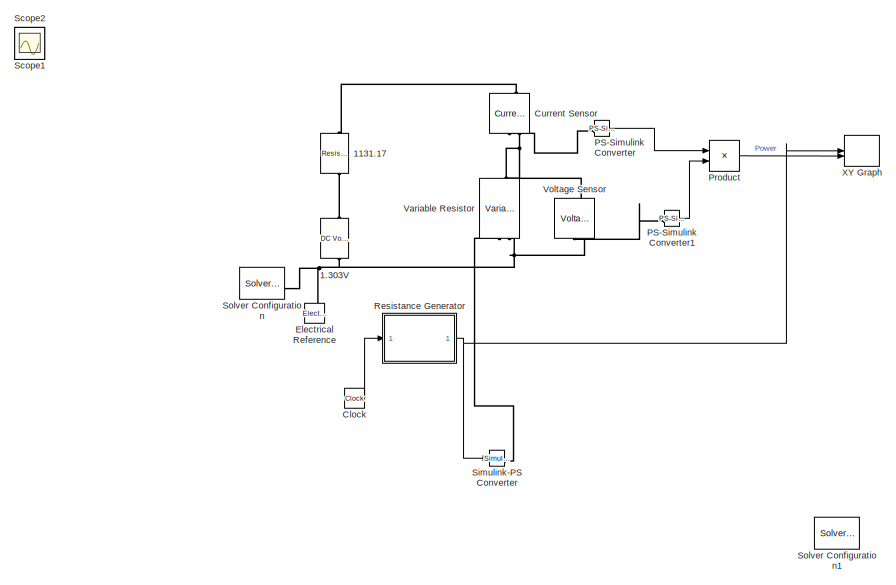
[diagram: root canvas - part 1/2, middle left region]
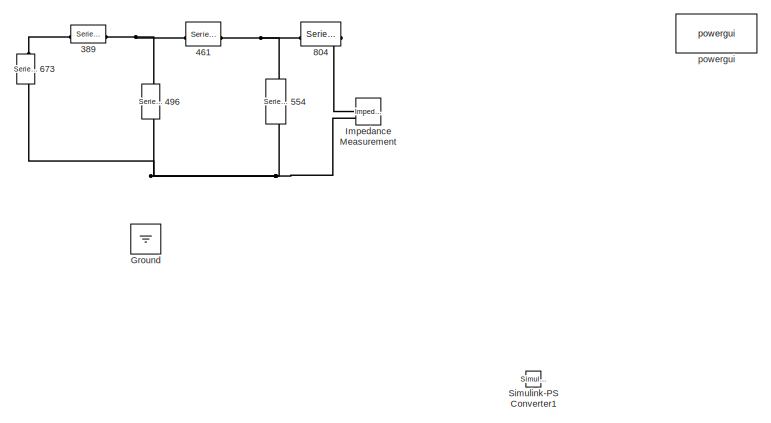
[diagram: root canvas - part 2/2, bottom right region]
MODEL slx_52c89bc29a28
KIND model
CONFIG AbsTol = auto
CONFIG EnableMultiTasking = off
CONFIG FixedStep = auto
CONFIG MaxStep = auto
CONFIG MinStep = auto
CONFIG RelTol = 1e-3
CONFIG SampleTimeConstraint = Unconstrained
CONFIG SolverName = VariableStepAuto
CONFIG StartTime = 0.0
CONFIG StopTime = 100
BLOCK [Reference] 1.303V  REF=fl_lib/Electrical/Electrical Sources/DC Voltage Source
  NameLocation = right
  SourceBlock = fl_lib/Electrical/Electrical Sources/DC Voltage Source
  SourceType = DC Voltage Source
BLOCK [Reference] 1131.17  REF=fl_lib/Electrical/Electrical Elements/Resistor
  NameLocation = left
  SourceBlock = fl_lib/Electrical/Electrical Elements/Resistor
  SourceType = Resistor
BLOCK [Reference] 389  REF=spsSeriesRLCBranchLib/Series RLC Branch
  LibrarySourceBlock = sps_lib/Passives/Series RLC Branch
  NameLocation = top
  SourceBlock = spsSeriesRLCBranchLib/Series RLC Branch
  SourceType = Series RLC Branch
BLOCK [Reference] 461  REF=spsSeriesRLCBranchLib/Series RLC Branch
  LibrarySourceBlock = sps_lib/Passives/Series RLC Branch
  NameLocation = top
  SourceBlock = spsSeriesRLCBranchLib/Series RLC Branch
  SourceType = Series RLC Branch
BLOCK [Reference] 496  REF=spsSeriesRLCBranchLib/Series RLC Branch
  LibrarySourceBlock = sps_lib/Passives/Series RLC Branch
  NameLocation = left
  SourceBlock = spsSeriesRLCBranchLib/Series RLC Branch
  SourceType = Series RLC Branch
BLOCK [Reference] 554  REF=spsSeriesRLCBranchLib/Series RLC Branch
  LibrarySourceBlock = sps_lib/Passives/Series RLC Branch
  NameLocation = left
  SourceBlock = spsSeriesRLCBranchLib/Series RLC Branch
  SourceType = Series RLC Branch
BLOCK [Reference] 673  REF=spsSeriesRLCBranchLib/Series RLC Branch
  LibrarySourceBlock = sps_lib/Passives/Series RLC Branch
  NameLocation = left
  SourceBlock = spsSeriesRLCBranchLib/Series RLC Branch
  SourceType = Series RLC Branch
BLOCK [Reference] 804  REF=spsSeriesRLCBranchLib/Series RLC Branch
  LibrarySourceBlock = sps_lib/Passives/Series RLC Branch
  NameLocation = top
  SourceBlock = spsSeriesRLCBranchLib/Series RLC Branch
  SourceType = Series RLC Branch
BLOCK [Clock] Clock
BLOCK [Reference] Current Sensor  REF=fl_lib/Electrical/Electrical Sensors/Current Sensor
  NameLocation = left
  SourceBlock = fl_lib/Electrical/Electrical Sensors/Current Sensor
  SourceType = Current Sensor
BLOCK [Reference] Electrical Reference  REF=fl_lib/Electrical/Electrical Elements/Electrical Reference
  NameLocation = right
  SourceBlock = fl_lib/Electrical/Electrical Elements/Electrical Reference
  SourceType = Electrical Reference
BLOCK [Ground] Ground
BLOCK [Reference] Impedance Measurement  REF=spsImpedanceMeasurementLib/Impedance Measurement
  LibrarySourceBlock = sps_lib/Sensors and Measurements/Impedance Measurement
  SourceBlock = spsImpedanceMeasurementLib/Impedance Measurement
  SourceType = Impedance Measurement
BLOCK [Reference] PS-Simulink Converter  REF=nesl_utility/PS-Simulink
Converter
  SourceBlock = nesl_utility/PS-Simulink\nConverter
  SourceType = PS-Simulink\nConverter
BLOCK [Reference] PS-Simulink Converter1  REF=nesl_utility/PS-Simulink
Converter
  SourceBlock = nesl_utility/PS-Simulink\nConverter
  SourceType = PS-Simulink\nConverter
BLOCK [Product] Product
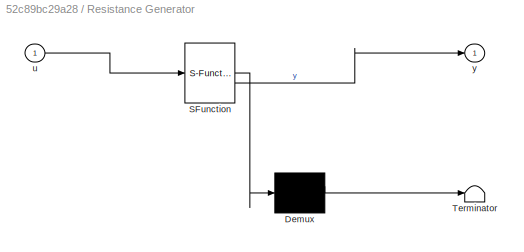
BLOCK [SubSystem] Resistance Generator
  ErrorFcn = Stateflow.Translate.translate
  LibrarySourceBlock = simulink/User-Defined\nFunctions/MATLAB Function
  PermitHierarchicalResolution = ExplicitOnly
  SFBlockType = MATLAB Function
  TreatAsAtomicUnit = on
BLOCK [Demux] Resistance Generator/ Demux 
  Outputs = 1
BLOCK [S-Function] Resistance Generator/ SFunction 
  EnableBusSupport = on
  FunctionName = sf_sfun
  PortCounts = [1 2]
  SFcnIsStateOwnerBlock = off
  SFunctionDeploymentMode = off
  Tag = Stateflow S-Function 1
BLOCK [Terminator] Resistance Generator/ Terminator 
BLOCK [Inport] Resistance Generator/u
BLOCK [Outport] Resistance Generator/y
BLOCK [Scope] Scope1
  Floating = off
  IOType = viewer
  NumInputPorts = 1
  ScopeSpecificationString = Simulink.scopes.TimeScopeBlockCfg('CurrentConfiguration', extmgr.ConfigurationSet(extmgr.Configuration('Core','General UI',true),extmgr.Configuration('Core','Source UI',true),extmgr.Configuration('Sources','WiredSimulink',true,'DataLoggingVariableName','ScopeData1'),extmgr.Configuration('Visuals','Time Domain',true,'SerializedDisplays',{struct('MinYLimReal','0.0005','MaxYLimReal','0.00083','YLabel...<+1374ch>
BLOCK [Scope] Scope2
  Floating = off
  IOType = viewer
  NumInputPorts = 1
  ScopeSpecificationString = Simulink.scopes.TimeScopeBlockCfg('CurrentConfiguration', extmgr.ConfigurationSet(extmgr.Configuration('Core','General UI',true),extmgr.Configuration('Core','Source UI',true),extmgr.Configuration('Sources','WiredSimulink',true,'DataLoggingVariableName','ScopeData2'),extmgr.Configuration('Visuals','Time Domain',true,'SerializedDisplays',{struct('MinYLimReal','0.36228','MaxYLimReal','0.73396','YLabe...<+1379ch>
BLOCK [Reference] Simulink-PS Converter  REF=nesl_utility/Simulink-PS
Converter
  SourceBlock = nesl_utility/Simulink-PS\nConverter
  SourceType = Simulink-PS\nConverter
BLOCK [Reference] Simulink-PS Converter1  REF=nesl_utility/Simulink-PS
Converter
  SourceBlock = nesl_utility/Simulink-PS\nConverter
  SourceType = Simulink-PS\nConverter
BLOCK [Reference] Solver Configuration  REF=nesl_utility/Solver
Configuration
  SourceBlock = nesl_utility/Solver\nConfiguration
  SourceType = Solver\nConfiguration
BLOCK [Reference] Solver Configuration1  REF=nesl_utility/Solver
Configuration
  SourceBlock = nesl_utility/Solver\nConfiguration
  SourceType = Solver\nConfiguration
BLOCK [Reference] Variable Resistor  REF=fl_lib/Electrical/Electrical Elements/Variable Resistor
  NameLocation = right
  SourceBlock = fl_lib/Electrical/Electrical Elements/Variable Resistor
  SourceType = Variable Resistor
BLOCK [Reference] Voltage Sensor  REF=fl_lib/Electrical/Electrical Sensors/Voltage Sensor
  NameLocation = right
  SourceBlock = fl_lib/Electrical/Electrical Sensors/Voltage Sensor
  SourceType = Voltage Sensor
BLOCK [Record] XY Graph
  CompatibilityTag = XY
  FileSettingsInternal = {"entries":[{"content":{"excelSettings":{"content":{},"type":"Streamout.ExcelSettings"}},"type":"Streamout.FileSettingStorage","uuid":"f3a8d1e4-8aa8-4c55-b946-e47157cf6093"}],"packageUris":["http://schema.mathworks.com/mf0/streamout_blocks/R2020a"],"version":"1.0"}
  Layout = [1 1]
  SignalsInternal = {"entries":[{"content":{"signals":[{"content":{"blockPath":["theveni_maxpower/XY Graph"],"channel":[],"dimensions":[1],"domain":"theveni_maxpower/XY Graph","lineColor":"#a2142f","plots":[1],"port":1,"sid":[""],"signalID":170,"signalName":"Resistance Generator"},"type":"RecordBlkView.Signal","uuid":"c9a1d221-9b0e-47ab-9e27-efdba6702b55"},{"content":{"blockPath":["theveni_maxpower/XY Graph"],"channe...<+406ch>
  VisualizationBindings = {"xyplotplugin":{"info":[{"series":[{"bindingParametersList":[{"parameter":"X-Axis","signalID":170,"signalName":"Resistance Generator"},{"parameter":"Y-Axis","signalID":174,"signalName":"Power"}],"seriesID":16030},{"bindingParametersList":[{"parameter":"X-Axis","signalID":170,"signalName":"Resistance Generator"},{"parameter":"Y-Axis","signalID":174,"signalName":"Power"}],"seriesID":51856}],"subplo...<+10ch>
BLOCK [Reference] powergui  REF=sps_lib/powergui
  Priority = 1
  SourceBlock = sps_lib/powergui
  SourceType = PSB option menu block
LINE Clock:1 -> Resistance Generator:1
LINE PS-Simulink Converter1:1 -> Product:2
LINE PS-Simulink Converter:1 -> Product:1
LINE Product:1 -> XY Graph:2
NET Resistance Generator:1 -> Simulink-PS Converter:1, XY Graph:1
PLINE 1.303V:LConn1 -- 1131.17:RConn1
PNET net1: 1.303V:RConn1 -- Electrical Reference:LConn1 -- Solver Configuration:RConn1 -- Variable Resistor:LConn2 -- Voltage Sensor:RConn2
PLINE 1131.17:LConn1 -- Current Sensor:LConn1
PNET net2: 389:LConn1 -- 461:RConn1 -- 496:LConn1
PLINE 389:RConn1 -- 673:LConn1
PNET net3: 461:LConn1 -- 554:LConn1 -- 804:RConn1
PNET net4: 496:RConn1 -- 554:RConn1 -- 673:RConn1 -- Impedance Measurement:LConn2
PLINE 804:LConn1 -- Impedance Measurement:LConn1
PLINE Current Sensor:RConn1 -- PS-Simulink Converter:LConn1
PNET net5: Current Sensor:RConn2 -- Variable Resistor:RConn1 -- Voltage Sensor:LConn1
PLINE PS-Simulink Converter1:LConn1 -- Voltage Sensor:RConn1
PLINE Simulink-PS Converter:RConn1 -- Variable Resistor:LConn1
note: NET lines group one-source signal fan-out (src -> all destinations, sorted); 1:1 wires keep LINE; PNET lines group multi-terminal physical nets as a canonical sorted terminal list (undirected conserving connections); 2-terminal nets keep the pairwise PLINE form
CHART Resistance Generator states=1 transitions=1
  STATE_LABEL 'eML_blk_kernel()'
  STATE_LABEL 'SCRIPT:\nfunction y = fcn(u)\nif(u~=40)\n    y = 500 + 16*u;\nelse\n    y=1131.173;\nend'
CHART  states=0 transitions=0
